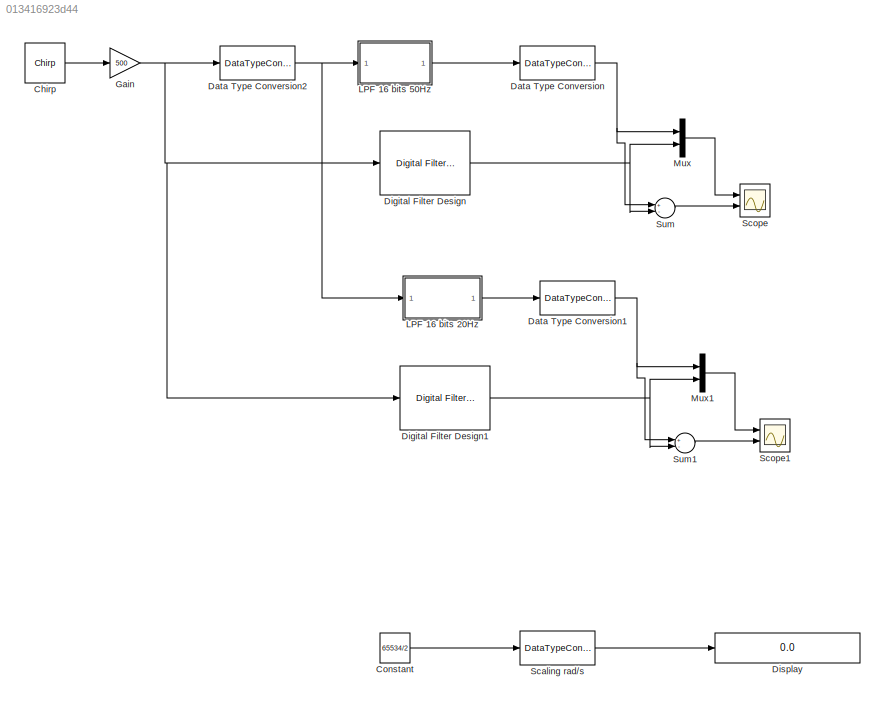
MODEL slx_013416923d44
KIND model
CONFIG AbsTol = auto
CONFIG EnableMultiTasking = on
CONFIG FixedStep = auto
CONFIG MaxStep = auto
CONFIG MinStep = auto
CONFIG RelTol = 1e-3
CONFIG SampleTimeConstraint = Unconstrained
CONFIG Solver = FixedStepAuto
CONFIG SolverName = FixedStepAuto
CONFIG StartTime = 0.0
CONFIG StopTime = 60
BLOCK [Reference] Chirp  REF=dspsrcs4/Chirp
  Ports = [0, 1]
  SourceBlock = dspsrcs4/Chirp
  SourceProductBaseCode = DS
  SourceProductName = DSP System Toolbox
  SourceType = Chirp
BLOCK [Constant] Constant
  OutDataTypeStr = int16
  Value = 65534/2
BLOCK [DataTypeConversion] Data Type Conversion
  OutDataTypeStr = double
  RndMeth = Floor
  SaturateOnIntegerOverflow = off
BLOCK [DataTypeConversion] Data Type Conversion1
  OutDataTypeStr = double
  RndMeth = Floor
  SaturateOnIntegerOverflow = off
BLOCK [DataTypeConversion] Data Type Conversion2
  OutDataTypeStr = fixdt(1,16,5)
  OutMax = [pi]
  OutMin = [0]
  RndMeth = Floor
  SaturateOnIntegerOverflow = off
BLOCK [Reference] Digital Filter Design  REF=dsparch4/Digital
Filter Design
  Ports = [1, 1]
  SourceBlock = dsparch4/Digital\nFilter Design
  SourceProductBaseCode = DS
  SourceProductName = DSP System Toolbox
  SourceType = Digital Filter Design
  UserDataPersistent = on
BLOCK [Reference] Digital Filter Design1  REF=dsparch4/Digital
Filter Design
  Ports = [1, 1]
  SourceBlock = dsparch4/Digital\nFilter Design
  SourceProductBaseCode = DS
  SourceProductName = DSP System Toolbox
  SourceType = Digital Filter Design
  UserDataPersistent = on
BLOCK [Display] Display
  Decimation = 1
  Ports = [1]
BLOCK [Gain] Gain
  Gain = 500
  ParamDataTypeStr = Inherit: Inherit via internal rule
  SaturateOnIntegerOverflow = off
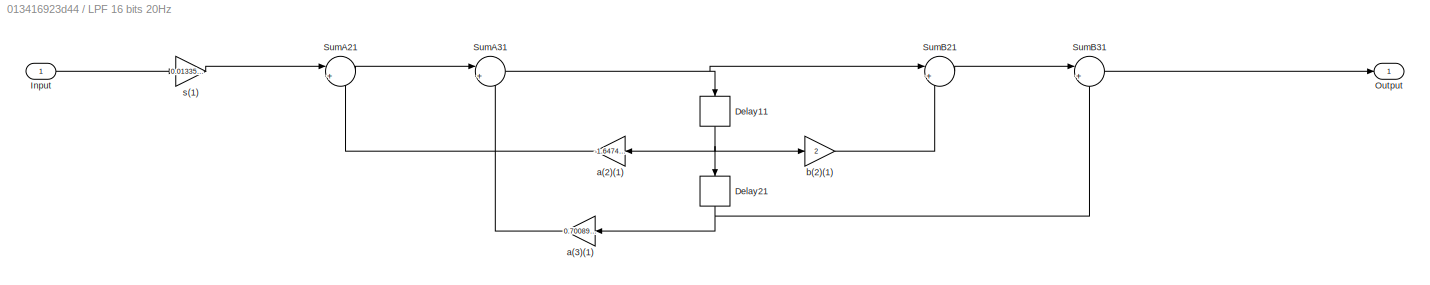
BLOCK [SubSystem] LPF 16 bits 20Hz
  ErrorFcn = dspFilterRealizedInBasicElemsAlgLoopErrFcnCallback
  Ports = [1, 1]
  RequestExecContextInheritance = off
  Tag = FilterWizardSubSystem
  UserDataPersistent = on
BLOCK [Delay] LPF 16 bits 20Hz/Delay11
  DelayLength = 1
  InitialCondition = 0
  InputPortMap = u0
  Ports = [1, 1]
BLOCK [Delay] LPF 16 bits 20Hz/Delay21
  DelayLength = 1
  InitialCondition = 0
  InputPortMap = u0
  Ports = [1, 1]
BLOCK [Inport] LPF 16 bits 20Hz/Input
  IconDisplay = Port number
BLOCK [Outport] LPF 16 bits 20Hz/Output
  IconDisplay = Port number
BLOCK [Sum] LPF 16 bits 20Hz/SumA21
  IconShape = round
  InputSameDT = off
  Inputs = |+-
  OutDataTypeStr = fixdt(1,16,6)
  Ports = [2, 1]
  RndMeth = Nearest
BLOCK [Sum] LPF 16 bits 20Hz/SumA31
  AccumDataTypeStr = Inherit: Same as first input
  IconShape = round
  InputSameDT = off
  Inputs = |+-
  OutDataTypeStr = fixdt(1,16,6)
  Ports = [2, 1]
  RndMeth = Nearest
BLOCK [Sum] LPF 16 bits 20Hz/SumB21
  IconShape = round
  InputSameDT = off
  Inputs = |++
  OutDataTypeStr = fixdt(1,16,5)
  Ports = [2, 1]
  RndMeth = Nearest
BLOCK [Sum] LPF 16 bits 20Hz/SumB31
  IconShape = round
  InputSameDT = off
  Inputs = |++
  OutDataTypeStr = fixdt(1,16,4)
  Ports = [2, 1]
  RndMeth = Nearest
BLOCK [Gain] LPF 16 bits 20Hz/a(2)(1)
  Gain = -1.64745998107697678
  OutDataTypeStr = fixdt(1,16,6)
  ParamDataTypeStr = fixdt(1,16,14)
  RndMeth = Nearest
BLOCK [Gain] LPF 16 bits 20Hz/a(3)(1)
  Gain = 0.700896781188402596
  OutDataTypeStr = fixdt(1,16,7)
  ParamDataTypeStr = fixdt(0,16,16)
  RndMeth = Nearest
BLOCK [Gain] LPF 16 bits 20Hz/b(2)(1)
  Gain = 2
  OutDataTypeStr = fixdt(1,16,5)
  ParamDataTypeStr = fixdt(0,16,14)
  RndMeth = Nearest
BLOCK [Gain] LPF 16 bits 20Hz/s(1)
  Gain = 0.0133592000278565052
  OutDataTypeStr = fixdt(1,16,11)
  ParamDataTypeStr = fixdt(0,16,22)
  RndMeth = Nearest
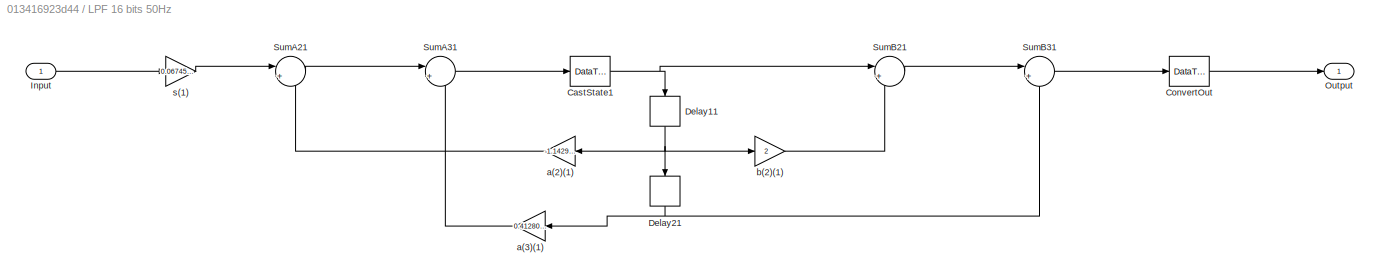
BLOCK [SubSystem] LPF 16 bits 50Hz 
  ErrorFcn = dspFilterRealizedInBasicElemsAlgLoopErrFcnCallback
  Ports = [1, 1]
  RequestExecContextInheritance = off
  Tag = FilterWizardSubSystem
  UserDataPersistent = on
BLOCK [DataTypeConversion] LPF 16 bits 50Hz /CastState1
  OutDataTypeStr = fixdt(1,16,6)
  RndMeth = Floor
  SaturateOnIntegerOverflow = off
BLOCK [DataTypeConversion] LPF 16 bits 50Hz /ConvertOut
  OutDataTypeStr = fixdt(1,16,4)
  RndMeth = Floor
  SaturateOnIntegerOverflow = off
BLOCK [Delay] LPF 16 bits 50Hz /Delay11
  DelayLength = 1
  InitialCondition = 0
  InputPortMap = u0
  Ports = [1, 1]
BLOCK [Delay] LPF 16 bits 50Hz /Delay21
  DelayLength = 1
  InitialCondition = 0
  InputPortMap = u0
  Ports = [1, 1]
BLOCK [Inport] LPF 16 bits 50Hz /Input
  IconDisplay = Port number
BLOCK [Outport] LPF 16 bits 50Hz /Output
  IconDisplay = Port number
BLOCK [Sum] LPF 16 bits 50Hz /SumA21
  AccumDataTypeStr = fixdt(1,16,6)
  IconShape = round
  InputSameDT = off
  Inputs = |+-
  OutDataTypeStr = fixdt(1,16,6)
  Ports = [2, 1]
  SaturateOnIntegerOverflow = off
BLOCK [Sum] LPF 16 bits 50Hz /SumA31
  AccumDataTypeStr = fixdt(1,16,6)
  IconShape = round
  InputSameDT = off
  Inputs = |+-
  OutDataTypeStr = fixdt(1,16,6)
  Ports = [2, 1]
  SaturateOnIntegerOverflow = off
BLOCK [Sum] LPF 16 bits 50Hz /SumB21
  AccumDataTypeStr = fixdt(1,16,5)
  IconShape = round
  InputSameDT = off
  Inputs = |++
  OutDataTypeStr = fixdt(1,16,5)
  Ports = [2, 1]
  SaturateOnIntegerOverflow = off
BLOCK [Sum] LPF 16 bits 50Hz /SumB31
  AccumDataTypeStr = fixdt(1,16,4)
  IconShape = round
  InputSameDT = off
  Inputs = |++
  OutDataTypeStr = fixdt(1,16,4)
  Ports = [2, 1]
  SaturateOnIntegerOverflow = off
BLOCK [Gain] LPF 16 bits 50Hz /a(2)(1)
  Gain = -1.14298050253990113
  OutDataTypeStr = fixdt(1,16,6)
  ParamDataTypeStr = fixdt(1,16,14)
  SaturateOnIntegerOverflow = off
BLOCK [Gain] LPF 16 bits 50Hz /a(3)(1)
  Gain = 0.412801598096188771
  OutDataTypeStr = fixdt(1,16,8)
  ParamDataTypeStr = fixdt(0,16,17)
  SaturateOnIntegerOverflow = off
BLOCK [Gain] LPF 16 bits 50Hz /b(2)(1)
  Gain = 2
  OutDataTypeStr = fixdt(1,16,5)
  ParamDataTypeStr = fixdt(0,16,14)
  SaturateOnIntegerOverflow = off
BLOCK [Gain] LPF 16 bits 50Hz /s(1)
  Gain = 0.0674552738890718956
  OutDataTypeStr = fixdt(1,16,8)
  ParamDataTypeStr = fixdt(0,16,19)
  SaturateOnIntegerOverflow = off
BLOCK [Mux] Mux
  DisplayOption = bar
  Inputs = 2
  Ports = [2, 1]
BLOCK [Mux] Mux1
  DisplayOption = bar
  Inputs = 2
  Ports = [2, 1]
BLOCK [DataTypeConversion] Scaling rad//s
  ConvertRealWorld = Stored Integer (SI)
  OutDataTypeStr = fixdt(1,16,2*pi/Lignes/TsQEI,0)
  OutMax = [pi]
  OutMin = [0]
  RndMeth = Floor
  SaturateOnIntegerOverflow = off
BLOCK [Scope] Scope
  Floating = off
  NumInputPorts = 2
  Ports = [2]
  ScopeSpecificationString = Simulink.scopes.TimeScopeBlockCfg('CurrentConfiguration', extmgr.ConfigurationSet(extmgr.Configuration('Core','General UI',true),extmgr.Configuration('Core','Source UI',true),extmgr.Configuration('Sources','WiredSimulink',true),extmgr.Configuration('Visuals','Time Domain',true,'SerializedDisplays',{struct('MinYLimReal','-628.125','MaxYLimReal','653.125','YLabelReal','','MinYLimMag',' 0.00000','Max...<+2055ch>
BLOCK [Scope] Scope1
  Floating = off
  NumInputPorts = 2
  Ports = [2]
  ScopeSpecificationString = Simulink.scopes.TimeScopeBlockCfg('CurrentConfiguration', extmgr.ConfigurationSet(extmgr.Configuration('Core','General UI',true),extmgr.Configuration('Core','Source UI',true),extmgr.Configuration('Sources','WiredSimulink',true,'DataLoggingVariableName','ScopeData1'),extmgr.Configuration('Visuals','Time Domain',true,'SerializedDisplays',{struct('MinYLimReal','-627.57273','MaxYLimReal','649.88901','...<+2081ch>
BLOCK [Sum] Sum
  InputSameDT = off
  Inputs = +-
  OutDataTypeStr = fixdt(1,16,4)
  Ports = [2, 1]
  SaturateOnIntegerOverflow = off
BLOCK [Sum] Sum1
  InputSameDT = off
  Inputs = +-
  OutDataTypeStr = fixdt(1,16,4)
  Ports = [2, 1]
  SaturateOnIntegerOverflow = off
LINE Chirp:1 -> Gain:1
LINE Constant:1 -> Scaling rad//s:1
NET Data Type Conversion1:1 -> Mux1:1, Sum1:1
NET Data Type Conversion2:1 -> LPF 16 bits 20Hz:1, LPF 16 bits 50Hz :1
NET Data Type Conversion:1 -> Mux:1, Sum:1
NET Digital Filter Design1:1 -> Mux1:2, Sum1:2
NET Digital Filter Design:1 -> Mux:2, Sum:2
NET Gain:1 -> Data Type Conversion2:1, Digital Filter Design1:1, Digital Filter Design:1
NET LPF 16 bits 20Hz/Delay11:1 -> LPF 16 bits 20Hz/Delay21:1, LPF 16 bits 20Hz/a(2)(1):1, LPF 16 bits 20Hz/b(2)(1):1
NET LPF 16 bits 20Hz/Delay21:1 -> LPF 16 bits 20Hz/SumB31:2, LPF 16 bits 20Hz/a(3)(1):1
LINE LPF 16 bits 20Hz/Input:1 -> LPF 16 bits 20Hz/s(1):1
LINE LPF 16 bits 20Hz/SumA21:1 -> LPF 16 bits 20Hz/SumA31:1
NET LPF 16 bits 20Hz/SumA31:1 -> LPF 16 bits 20Hz/Delay11:1, LPF 16 bits 20Hz/SumB21:1
LINE LPF 16 bits 20Hz/SumB21:1 -> LPF 16 bits 20Hz/SumB31:1
LINE LPF 16 bits 20Hz/SumB31:1 -> LPF 16 bits 20Hz/Output:1
LINE LPF 16 bits 20Hz/a(2)(1):1 -> LPF 16 bits 20Hz/SumA21:2
LINE LPF 16 bits 20Hz/a(3)(1):1 -> LPF 16 bits 20Hz/SumA31:2
LINE LPF 16 bits 20Hz/b(2)(1):1 -> LPF 16 bits 20Hz/SumB21:2
LINE LPF 16 bits 20Hz/s(1):1 -> LPF 16 bits 20Hz/SumA21:1
LINE LPF 16 bits 20Hz:1 -> Data Type Conversion1:1
NET LPF 16 bits 50Hz /CastState1:1 -> LPF 16 bits 50Hz /Delay11:1, LPF 16 bits 50Hz /SumB21:1
LINE LPF 16 bits 50Hz /ConvertOut:1 -> LPF 16 bits 50Hz /Output:1
NET LPF 16 bits 50Hz /Delay11:1 -> LPF 16 bits 50Hz /Delay21:1, LPF 16 bits 50Hz /a(2)(1):1, LPF 16 bits 50Hz /b(2)(1):1
NET LPF 16 bits 50Hz /Delay21:1 -> LPF 16 bits 50Hz /SumB31:2, LPF 16 bits 50Hz /a(3)(1):1
LINE LPF 16 bits 50Hz /Input:1 -> LPF 16 bits 50Hz /s(1):1
LINE LPF 16 bits 50Hz /SumA21:1 -> LPF 16 bits 50Hz /SumA31:1
LINE LPF 16 bits 50Hz /SumA31:1 -> LPF 16 bits 50Hz /CastState1:1
LINE LPF 16 bits 50Hz /SumB21:1 -> LPF 16 bits 50Hz /SumB31:1
LINE LPF 16 bits 50Hz /SumB31:1 -> LPF 16 bits 50Hz /ConvertOut:1
LINE LPF 16 bits 50Hz /a(2)(1):1 -> LPF 16 bits 50Hz /SumA21:2
LINE LPF 16 bits 50Hz /a(3)(1):1 -> LPF 16 bits 50Hz /SumA31:2
LINE LPF 16 bits 50Hz /b(2)(1):1 -> LPF 16 bits 50Hz /SumB21:2
LINE LPF 16 bits 50Hz /s(1):1 -> LPF 16 bits 50Hz /SumA21:1
LINE LPF 16 bits 50Hz :1 -> Data Type Conversion:1
LINE Mux1:1 -> Scope1:1
LINE Mux:1 -> Scope:1
LINE Scaling rad//s:1 -> Display:1
LINE Sum1:1 -> Scope1:2
LINE Sum:1 -> Scope:2
note: NET lines group one-source signal fan-out (src -> all destinations, sorted); 1:1 wires keep LINE
